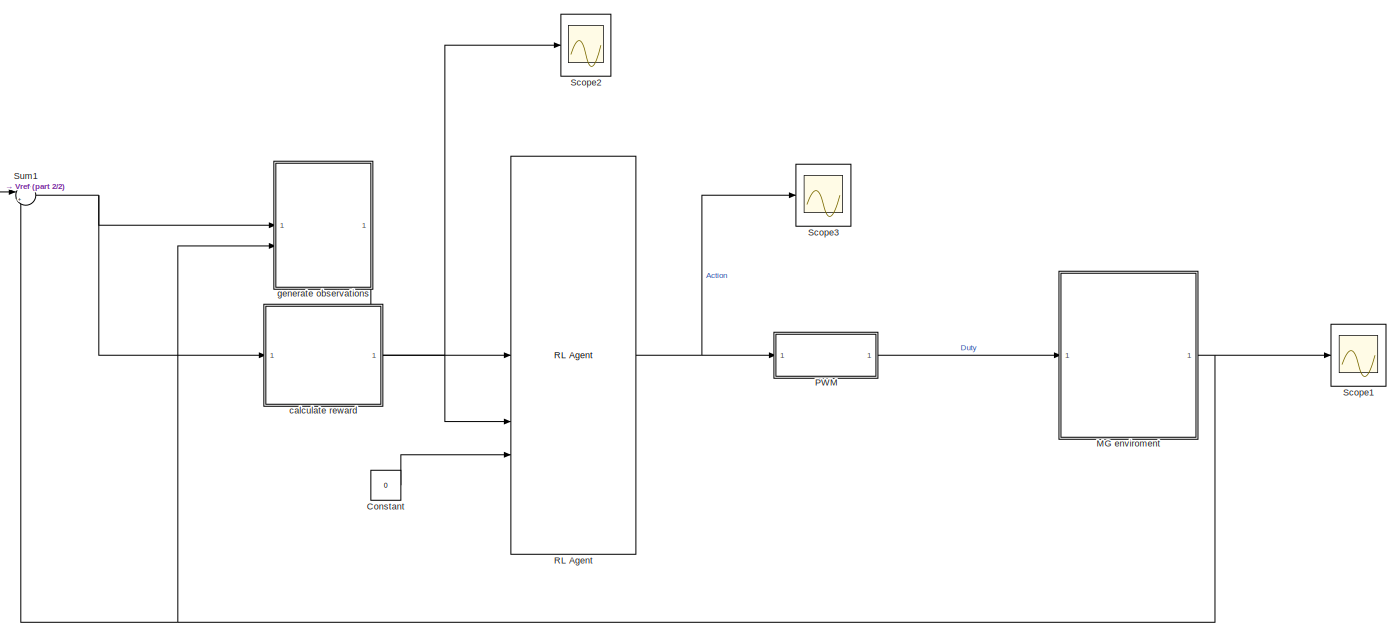
[diagram: root canvas - part 1/2, most of the canvas]
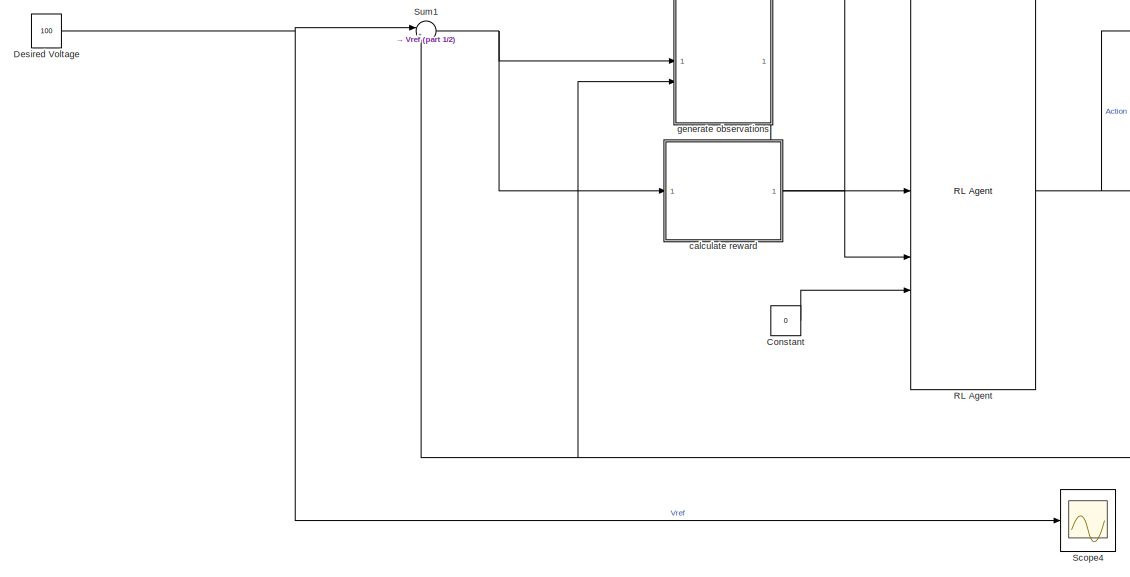
[diagram: root canvas - part 2/2, left side, full height]
MODEL slx_7d7753020943
KIND model
CONFIG AbsTol = auto
CONFIG EnableMultiTasking = off
CONFIG FixedStep = 0.001
CONFIG MaxStep = auto
CONFIG MinStep = auto
CONFIG PostLoadFcn = , if any(exist('dsrtsu_mdlpostloadfcn', 'file') == [2, 3, 6]), try dsrtsu_mdlpostloadfcn('Execute', bdroot); catch fprintf('Error in PostLoadFcn (dsrtsu_mdlpostloadfcn) for model "%s":\n %s\n', bdroot, lasterr); end, end, \n
CONFIG RelTol = 1e-3
CONFIG SampleTimeConstraint = Unconstrained
CONFIG SolverName = VariableStepAuto
CONFIG StartTime = 0.0
CONFIG StopTime = 0.4
BLOCK [Constant] Constant
  Value = 0
BLOCK [Constant] Desired Voltage
  Value = 100
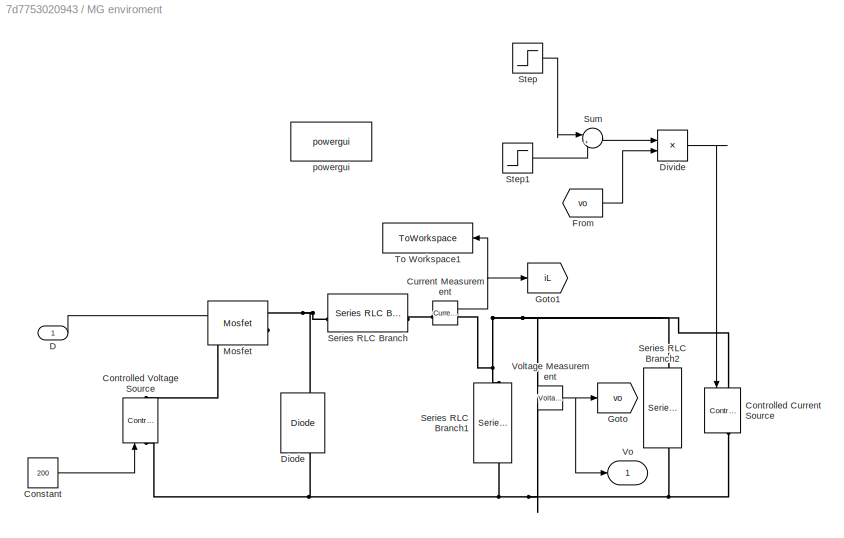
BLOCK [SubSystem] MG enviroment 
BLOCK [Constant] MG enviroment /Constant
  Value = 200
BLOCK [Reference] MG enviroment /Controlled Current Source  REF=spsControlledCurrentSourceLib/Controlled Current Source
  NameLocation = left
  SourceBlock = spsControlledCurrentSourceLib/Controlled Current Source
  SourceType = Controlled Current Source
BLOCK [Reference] MG enviroment /Controlled Voltage Source  REF=spsControlledVoltageSourceLib/Controlled Voltage Source
  NameLocation = right
  SourceBlock = spsControlledVoltageSourceLib/Controlled Voltage Source
  SourceType = Controlled Voltage Source
BLOCK [Reference] MG enviroment /Current Measurement  REF=spsCurrentMeasurementLib/Current Measurement
  SourceBlock = spsCurrentMeasurementLib/Current Measurement
  SourceType = Current Measurement
  UserDataPersistent = on
BLOCK [Inport] MG enviroment /D
BLOCK [Reference] MG enviroment /Diode  REF=spsDiodeLib/Diode
  NameLocation = right
  SourceBlock = spsDiodeLib/Diode
  SourceType = Diode
BLOCK [Product] MG enviroment /Divide
  Inputs = */
BLOCK [From] MG enviroment /From
  GotoTag = vo
BLOCK [Goto] MG enviroment /Goto
  GotoTag = vo
BLOCK [Goto] MG enviroment /Goto1
  GotoTag = iL
BLOCK [Reference] MG enviroment /Mosfet  REF=spsMosfetLib/Mosfet
  NameLocation = top
  SourceBlock = spsMosfetLib/Mosfet
  SourceType = Mosfet
BLOCK [Reference] MG enviroment /Series RLC Branch  REF=spsSeriesRLCBranchLib/Series RLC Branch
  SourceBlock = spsSeriesRLCBranchLib/Series RLC Branch
  SourceType = Series RLC Branch
BLOCK [Reference] MG enviroment /Series RLC Branch1  REF=spsSeriesRLCBranchLib/Series RLC Branch
  NameLocation = left
  SourceBlock = spsSeriesRLCBranchLib/Series RLC Branch
  SourceType = Series RLC Branch
BLOCK [Reference] MG enviroment /Series RLC Branch2  REF=spsSeriesRLCBranchLib/Series RLC Branch
  NameLocation = left
  SourceBlock = spsSeriesRLCBranchLib/Series RLC Branch
  SourceType = Series RLC Branch
BLOCK [Step] MG enviroment /Step
  After = 800
  Before = 200
  SampleTime = 0
  Time = 0.14
BLOCK [Step] MG enviroment /Step1
  After = -600
  SampleTime = 0
  Time = 0.2
BLOCK [Sum] MG enviroment /Sum
  Inputs = |++
BLOCK [ToWorkspace] MG enviroment /To Workspace1
  FixptAsFi = on
  MaxDataPoints = inf
  NameLocation = top
  SampleTime = -1
  SaveFormat = Structure With Time
  VariableName = iL
BLOCK [Outport] MG enviroment /Vo
  VectorParamsAs1DForOutWhenUnconnected = off
BLOCK [Reference] MG enviroment /Voltage Measurement  REF=spsVoltageMeasurementLib/Voltage Measurement
  SourceBlock = spsVoltageMeasurementLib/Voltage Measurement
  SourceType = Voltage Measurement
  UserDataPersistent = on
BLOCK [Reference] MG enviroment /powergui  REF=spspowerguiLib/powergui
  Priority = 1
  SourceBlock = spspowerguiLib/powergui
  SourceType = PSB option menu block
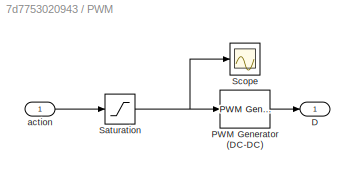
BLOCK [SubSystem] PWM
BLOCK [Outport] PWM/D
  VectorParamsAs1DForOutWhenUnconnected = off
BLOCK [Reference] PWM/PWM Generator (DC-DC)  REF=spsPWMGeneratorDCDCLib/PWM Generator
(DC-DC)
  SourceBlock = spsPWMGeneratorDCDCLib/PWM Generator\n(DC-DC)
  SourceType = PWM Generator (DC-DC)
BLOCK [Saturate] PWM/Saturation
  LowerLimit = 0.01
  UpperLimit = 0.99
BLOCK [Scope] PWM/Scope
  Floating = off
  NumInputPorts = 1
  ScopeSpecificationString = Simulink.scopes.TimeScopeBlockCfg('CurrentConfiguration', extmgr.ConfigurationSet(extmgr.Configuration('Core','General UI',true),extmgr.Configuration('Core','Source UI',true),extmgr.Configuration('Sources','WiredSimulink',true,'DataLoggingVariableName','ScopeData6'),extmgr.Configuration('Visuals','Time Domain',true,'SerializedDisplays',{struct('MinYLimReal','-0.09','MaxYLimReal','0.91','YLabelReal...<+1441ch>
BLOCK [Inport] PWM/action
BLOCK [Reference] RL Agent  REF=rllib/RL Agent
  SourceBlock = rllib/RL Agent
  SourceType = RL Agent
BLOCK [Scope] Scope1
  Floating = off
  NumInputPorts = 1
  ScopeSpecificationString = Simulink.scopes.TimeScopeBlockCfg('CurrentConfiguration', extmgr.ConfigurationSet(extmgr.Configuration('Core','General UI',true),extmgr.Configuration('Core','Source UI',true),extmgr.Configuration('Sources','WiredSimulink',true,'DataLoggingVariableName','buck_final','DataLogging',true,'DataLoggingSaveFormat','StructureWithTime'),extmgr.Configuration('Visuals','Time Domain',true,'SerializedDisplays'...<+1548ch>
BLOCK [Scope] Scope2
  Floating = off
  NumInputPorts = 1
  ScopeSpecificationString = Simulink.scopes.TimeScopeBlockCfg('CurrentConfiguration', extmgr.ConfigurationSet(extmgr.Configuration('Core','General UI',true),extmgr.Configuration('Core','Source UI',true),extmgr.Configuration('Sources','WiredSimulink',true,'DataLoggingVariableName','ScopeData3'),extmgr.Configuration('Visuals','Time Domain',true,'SerializedDisplays',{struct('MinYLimReal','-70.02682','MaxYLimReal','18.89187','YL...<+1480ch>
BLOCK [Scope] Scope3
  Floating = off
  NumInputPorts = 1
  ScopeSpecificationString = Simulink.scopes.TimeScopeBlockCfg('CurrentConfiguration', extmgr.ConfigurationSet(extmgr.Configuration('Core','General UI',true),extmgr.Configuration('Core','Source UI',true),extmgr.Configuration('Sources','WiredSimulink',true,'DataLoggingVariableName','ScopeData2'),extmgr.Configuration('Visuals','Time Domain',true,'SerializedDisplays',{struct('MinYLimReal','0.00000','MaxYLimReal','0.1','YLabelRea...<+1454ch>
BLOCK [Scope] Scope4
  Floating = off
  NumInputPorts = 1
  ScopeSpecificationString = Simulink.scopes.TimeScopeBlockCfg('CurrentConfiguration', extmgr.ConfigurationSet(extmgr.Configuration('Core','General UI',true),extmgr.Configuration('Core','Source UI',true),extmgr.Configuration('Sources','WiredSimulink',true,'DataLoggingVariableName','ScopeData2'),extmgr.Configuration('Visuals','Time Domain',true,'SerializedDisplays',{struct('MinYLimReal','90.00000','MaxYLimReal','110.00000','YL...<+1524ch>
BLOCK [Sum] Sum1
  Inputs = |+-
  SaturateOnIntegerOverflow = on
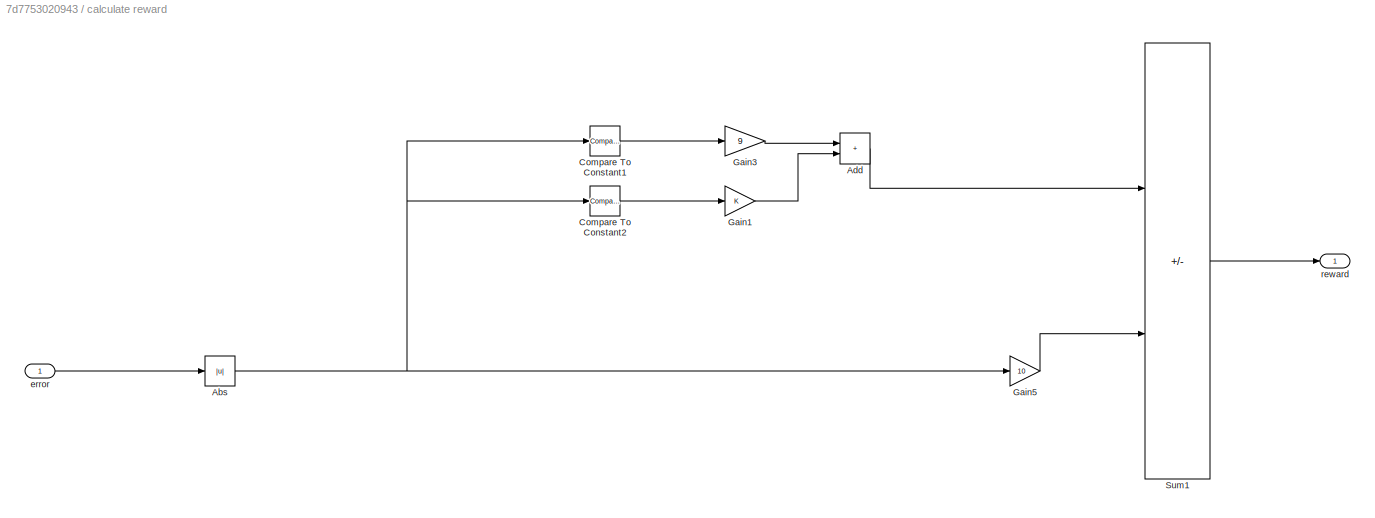
BLOCK [SubSystem] calculate reward
BLOCK [Abs] calculate reward/Abs
  SaturateOnIntegerOverflow = off
BLOCK [Sum] calculate reward/Add
  IconShape = rectangular
BLOCK [Reference] calculate reward/Compare To Constant1  REF=simulink/Logic and Bit
Operations/Compare
To Constant
  SourceBlock = simulink/Logic and Bit\nOperations/Compare\nTo Constant
  SourceType = Compare To Constant
BLOCK [Reference] calculate reward/Compare To Constant2  REF=simulink/Logic and Bit
Operations/Compare
To Constant
  SourceBlock = simulink/Logic and Bit\nOperations/Compare\nTo Constant
  SourceType = Compare To Constant
BLOCK [Gain] calculate reward/Gain1
BLOCK [Gain] calculate reward/Gain3
  Gain = 9
BLOCK [Gain] calculate reward/Gain5
  Gain = 10
BLOCK [Sum] calculate reward/Sum1
  IconShape = rectangular
  Inputs = +-
  OutDataTypeStr = double
BLOCK [Inport] calculate reward/error
BLOCK [Outport] calculate reward/reward
  VectorParamsAs1DForOutWhenUnconnected = off
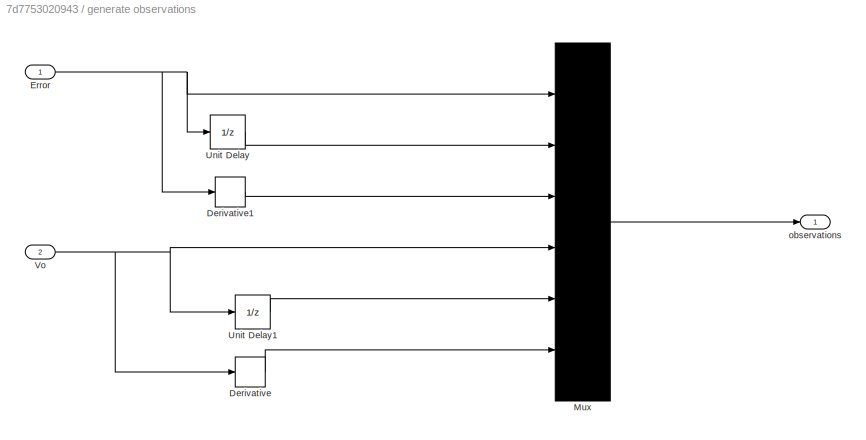
BLOCK [SubSystem] generate observations
BLOCK [Derivative] generate observations/Derivative
BLOCK [Derivative] generate observations/Derivative1
BLOCK [Inport] generate observations/Error
  NameLocation = top
BLOCK [Mux] generate observations/Mux
  DisplayOption = bar
  Inputs = 6
BLOCK [UnitDelay] generate observations/Unit Delay
  HasFrameUpgradeWarning = on
  SampleTime = -1
BLOCK [UnitDelay] generate observations/Unit Delay1
  HasFrameUpgradeWarning = on
  SampleTime = -1
BLOCK [Inport] generate observations/Vo
  Port = 2
BLOCK [Outport] generate observations/observations
  VectorParamsAs1DForOutWhenUnconnected = off
LINE Constant:1 -> RL Agent:3
NET Desired Voltage:1 -> Scope4:1, Sum1:1
LINE MG enviroment /Constant:1 -> MG enviroment /Controlled Voltage Source:1
NET MG enviroment /Current Measurement:1 -> MG enviroment /Goto1:1, MG enviroment /To Workspace1:1
LINE MG enviroment /D:1 -> MG enviroment /Mosfet:1
LINE MG enviroment /Divide:1 -> MG enviroment /Controlled Current Source:1
LINE MG enviroment /From:1 -> MG enviroment /Divide:2
LINE MG enviroment /Step1:1 -> MG enviroment /Sum:2
LINE MG enviroment /Step:1 -> MG enviroment /Sum:1
LINE MG enviroment /Sum:1 -> MG enviroment /Divide:1
NET MG enviroment /Voltage Measurement:1 -> MG enviroment /Goto:1, MG enviroment /Vo:1
NET MG enviroment :1 -> Scope1:1, Sum1:2, generate observations:2
LINE PWM/PWM Generator (DC-DC):1 -> PWM/D:1
NET PWM/Saturation:1 -> PWM/PWM Generator (DC-DC):1, PWM/Scope:1
LINE PWM/action:1 -> PWM/Saturation:1
LINE PWM:1 -> MG enviroment :1
NET RL Agent:1 -> PWM:1, Scope3:1
NET Sum1:1 -> calculate reward:1, generate observations:1
NET calculate reward/Abs:1 -> calculate reward/Compare To Constant1:1, calculate reward/Compare To Constant2:1, calculate reward/Gain5:1
LINE calculate reward/Add:1 -> calculate reward/Sum1:1
LINE calculate reward/Compare To Constant1:1 -> calculate reward/Gain3:1
LINE calculate reward/Compare To Constant2:1 -> calculate reward/Gain1:1
LINE calculate reward/Gain1:1 -> calculate reward/Add:2
LINE calculate reward/Gain3:1 -> calculate reward/Add:1
LINE calculate reward/Gain5:1 -> calculate reward/Sum1:2
LINE calculate reward/Sum1:1 -> calculate reward/reward:1
LINE calculate reward/error:1 -> calculate reward/Abs:1
NET calculate reward:1 -> RL Agent:2, Scope2:1
LINE generate observations/Derivative1:1 -> generate observations/Mux:3
LINE generate observations/Derivative:1 -> generate observations/Mux:6
NET generate observations/Error:1 -> generate observations/Derivative1:1, generate observations/Mux:1, generate observations/Unit Delay:1
LINE generate observations/Mux:1 -> generate observations/observations:1
LINE generate observations/Unit Delay1:1 -> generate observations/Mux:5
LINE generate observations/Unit Delay:1 -> generate observations/Mux:2
NET generate observations/Vo:1 -> generate observations/Derivative:1, generate observations/Mux:4, generate observations/Unit Delay1:1
LINE generate observations:1 -> RL Agent:1
PNET net1: MG enviroment /Controlled Current Source:LConn1 -- MG enviroment /Current Measurement:RConn1 -- MG enviroment /Series RLC Branch1:LConn1 -- MG enviroment /Series RLC Branch2:LConn1 -- MG enviroment /Voltage Measurement:LConn1
PNET net2: MG enviroment /Controlled Current Source:RConn1 -- MG enviroment /Controlled Voltage Source:LConn1 -- MG enviroment /Diode:LConn1 -- MG enviroment /Series RLC Branch1:RConn1 -- MG enviroment /Series RLC Branch2:RConn1 -- MG enviroment /Voltage Measurement:LConn2
PLINE MG enviroment /Controlled Voltage Source:RConn1 -- MG enviroment /Mosfet:LConn1
PLINE MG enviroment /Current Measurement:LConn1 -- MG enviroment /Series RLC Branch:RConn1
PNET net3: MG enviroment /Diode:RConn1 -- MG enviroment /Mosfet:RConn1 -- MG enviroment /Series RLC Branch:LConn1
note: NET lines group one-source signal fan-out (src -> all destinations, sorted); 1:1 wires keep LINE; PNET lines group multi-terminal physical nets as a canonical sorted terminal list (undirected conserving connections); 2-terminal nets keep the pairwise PLINE form
